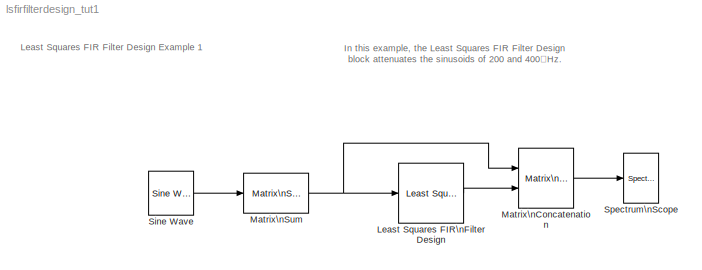
MODEL lsfirfilterdesign_tut1
KIND model
CONFIG AbsTol = auto
CONFIG FixedStep = auto
CONFIG MaxStep = auto
CONFIG MinStep = auto
CONFIG RelTol = 1e-3
CONFIG Solver = FixedStepDiscrete
CONFIG SolverMode = Auto
CONFIG StartTime = 0.0
CONFIG StopTime = inf
BLOCK [Reference] Least Squares FIR\nFilter Design  REF=dspddes3/Least Squares FIR\nFilter Design
  A = [1 1 0 0 1 1 0 0]
  F = [0 125 175 225 275 325 375 500]/500
  N = 16
  Ports = [1, 1]
  SourceBlock = dspddes3/Least Squares FIR\nFilter Design
  SourceType = Least Squares FIR Filter Design
  W = [1 1 1 1]
  filttype = Multiband
BLOCK [Reference] Matrix\nConcatenation  REF=simulink/Math\nOperations/Matrix\nConcatenation
  Ports = [2, 1]
  SourceBlock = simulink/Math\nOperations/Matrix\nConcatenation
  SourceType = Matrix Concatenation
  catMethod = Horizontal
  numInports = 2
BLOCK [Reference] Matrix\nSum  REF=dspmtrx3/Matrix\nSum
  Dim = Rows
  Ports = [1, 1]
  SourceBlock = dspmtrx3/Matrix\nSum
  SourceType = Matrix Sum
BLOCK [Reference] Sine Wave  REF=dspsrcs4/Sine Wave
  Amplitude = 10
  CompMethod = Trigonometric fcn
  Frequency = [100 200 300 400]
  OutComplex = Real
  Phase = 0
  Ports = [0, 1]
  ResetState = Restart at time zero
  SampleMode = Discrete
  SampleTime = 0.001
  SamplesPerFrame = 128
  SourceBlock = dspsrcs4/Sine Wave
  SourceType = Sine Wave
  TableSize = Speed
  additionalParams = off
  dataType = double
  fracBitsMode = Best precision
  numFracBits = 14
  udDataType = sfix(16)
  wordLen = 16
BLOCK [Reference] Spectrum\nScope  REF=dspsnks4/Spectrum\nScope
  AxisGrid = on
  AxisLegend = off
  AxisProperties = off
  AxisZoom = off
  BufferSize = 128
  DisplayProperties = off
  Domain = Frequency
  FFTlength = 128
  FigPos = get(0,'defaultfigureposition')
  FrameNumber = on
  HorizSpan = 1
  InheritXIncr = on
  LineColors = [0 0 1]
  LineProperties = off
  Memory = off
  OpenScopeAtSimStart = on
  OpenScopeImmediately = off
  Overlap = 64
  Ports = [1]
  ScopeProperties = on
  SourceBlock = dspsnks4/Spectrum\nScope
  SourceType = Spectrum Scope
  UseBuffer = off
  XIncr = 1.0
  XLabel = Samples
  XRange = [0...Fs/2]
  XUnits = Hertz
  YLabel = Magnitude, dB
  YMax = 34.6872027325711
  YMin = -88.6943683511669
  YUnits = dB
  inpFftLenInherit = off
  numAvg = 2
ANNOTATION (root): In this example, the Least Squares FIR Filter Design \nblock attenuates the sinusoids of 200 and 400 Hz.
ANNOTATION (root): Least Squares FIR Filter Design Example 1
LINE Least Squares FIR\nFilter Design:1 -> Matrix\nConcatenation:2
LINE Matrix\nConcatenation:1 -> Spectrum\nScope:1
NET Matrix\nSum:1 -> Least Squares FIR\nFilter Design:1, Matrix\nConcatenation:1
LINE Sine Wave:1 -> Matrix\nSum:1
note: NET lines group one-source signal fan-out (src -> all destinations, sorted); 1:1 wires keep LINE
